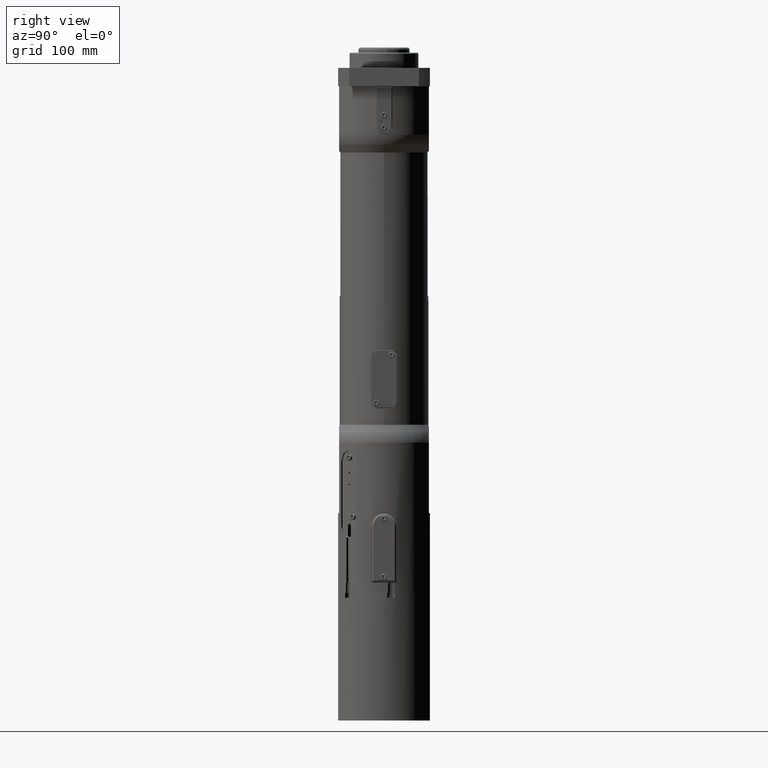
[diagram: clean part render]
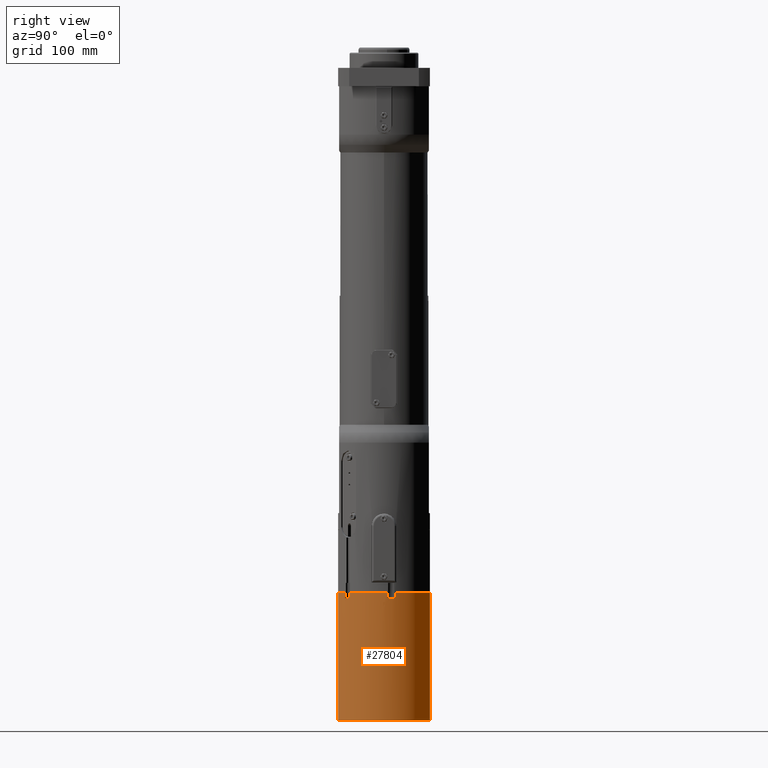
[diagram: same view with one face highlighted and labeled with its STEP entity id]
A machine part, right view. The second image highlights one B-rep face of the part: STEP entity #27804.
In plain terms, the highlighted cylindrical surface (partial cylindrical patch) has radius 51 mm, axis along (0, 0, -1).
Its self-contained STEP definition (entity closure, byte-faithful):
#1989=B_SPLINE_CURVE_WITH_KNOTS('',3,(#43054,#43055,#43056,#43057,#43058,
#43059,#43060,#43061,#43062,#43063,#43064,#43065,#43066,#43067,#43068,#43069,
#43070,#43071,#43072),.UNSPECIFIED.,.F.,.F.,(4,2,2,2,3,2,2,2,4),(-0.301461076527373,
-0.226077670894244,-0.150694265261116,-0.0753471326305579,0.,0.075347132630558,
0.150694265261116,0.226077670894244,0.301461076527373),.UNSPECIFIED.);
#1992=B_SPLINE_CURVE_WITH_KNOTS('',3,(#43113,#43114,#43115,#43116,#43117,
#43118,#43119,#43120,#43121,#43122,#43123,#43124,#43125,#43126,#43127,#43128,
#43129,#43130),.UNSPECIFIED.,.F.,.F.,(4,2,2,2,2,2,2,2,4),(0.30136199645185,
0.376745402084978,0.452128807718106,0.527475940348664,0.602823072979222,
0.67817020560978,0.753517338240339,0.828900743873467,0.904284149506595),
 .UNSPECIFIED.);
#3729=LINE('',#43629,#5582);
#3731=LINE('',#43635,#5584);
#3732=LINE('',#43636,#5585);
#3733=LINE('',#43638,#5586);
#3734=LINE('',#43641,#5587);
#3735=LINE('',#43642,#5588);
#5582=VECTOR('',#34802,5.);
#5584=VECTOR('',#34808,5.);
#5585=VECTOR('',#34809,5.);
#5586=VECTOR('',#34810,5.);
#5587=VECTOR('',#34813,125.);
#5588=VECTOR('',#34814,125.);
#7145=FACE_BOUND('',#10485,.T.);
#7666=CYLINDRICAL_SURFACE('',#30104,51.);
#8598=FACE_OUTER_BOUND('',#10484,.T.);
#10484=EDGE_LOOP('',(#21722,#21723,#21724,#21725,#21726,#21727,#21728,#21729,
#21730,#21731,#21732,#21733));
#10485=EDGE_LOOP('',(#21734,#21735,#21736,#21737));
#12373=CIRCLE('',#29902,51.);
#12380=CIRCLE('',#29913,51.);
#12382=CIRCLE('',#29917,51.);
#12395=CIRCLE('',#29939,51.);
#12399=CIRCLE('',#29946,51.);
#12458=CIRCLE('',#30059,51.);
#12486=CIRCLE('',#30105,51.);
#12487=CIRCLE('',#30106,51.);
#13985=VERTEX_POINT('',#43013);
#13986=VERTEX_POINT('',#43015);
#13998=VERTEX_POINT('',#43051);
#13999=VERTEX_POINT('',#43053);
#14002=VERTEX_POINT('',#43088);
#14004=VERTEX_POINT('',#43111);
#14025=VERTEX_POINT('',#43191);
#14026=VERTEX_POINT('',#43192);
#14031=VERTEX_POINT('',#43210);
#14034=VERTEX_POINT('',#43215);
#14123=VERTEX_POINT('',#43504);
#14124=VERTEX_POINT('',#43506);
#14171=VERTEX_POINT('',#43632);
#14172=VERTEX_POINT('',#43633);
#14173=VERTEX_POINT('',#43637);
#14174=VERTEX_POINT('',#43639);
#16771=EDGE_CURVE('',#13986,#13985,#12373,.T.);
#16784=EDGE_CURVE('',#13999,#13998,#1989,.T.);
#16789=EDGE_CURVE('',#13998,#14002,#12380,.T.);
#16792=EDGE_CURVE('',#14002,#14004,#1992,.T.);
#16794=EDGE_CURVE('',#14004,#13999,#12382,.T.);
#16823=EDGE_CURVE('',#14025,#14026,#12395,.T.);
#16836=EDGE_CURVE('',#14031,#14034,#12399,.T.);
#16966=EDGE_CURVE('',#14124,#14123,#12458,.T.);
#17025=EDGE_CURVE('',#14124,#14034,#3729,.T.);
#17027=EDGE_CURVE('',#14171,#14172,#12486,.T.);
#17028=EDGE_CURVE('',#14172,#14031,#3731,.T.);
#17029=EDGE_CURVE('',#14123,#13986,#3732,.T.);
#17030=EDGE_CURVE('',#14173,#13985,#3733,.T.);
#17031=EDGE_CURVE('',#14173,#14174,#12487,.T.);
#17032=EDGE_CURVE('',#14174,#14026,#3734,.T.);
#17033=EDGE_CURVE('',#14171,#14025,#3735,.T.);
#21722=ORIENTED_EDGE('',*,*,#17027,.T.);
#21723=ORIENTED_EDGE('',*,*,#17028,.T.);
#21724=ORIENTED_EDGE('',*,*,#16836,.T.);
#21725=ORIENTED_EDGE('',*,*,#17025,.F.);
#21726=ORIENTED_EDGE('',*,*,#16966,.T.);
#21727=ORIENTED_EDGE('',*,*,#17029,.T.);
#21728=ORIENTED_EDGE('',*,*,#16771,.T.);
#21729=ORIENTED_EDGE('',*,*,#17030,.F.);
#21730=ORIENTED_EDGE('',*,*,#17031,.T.);
#21731=ORIENTED_EDGE('',*,*,#17032,.T.);
#21732=ORIENTED_EDGE('',*,*,#16823,.F.);
#21733=ORIENTED_EDGE('',*,*,#17033,.F.);
#21734=ORIENTED_EDGE('',*,*,#16784,.T.);
#21735=ORIENTED_EDGE('',*,*,#16789,.T.);
#21736=ORIENTED_EDGE('',*,*,#16792,.T.);
#21737=ORIENTED_EDGE('',*,*,#16794,.T.);
#27804=ADVANCED_FACE('',(#8598,#7145),#7666,.T.);
#29902=AXIS2_PLACEMENT_3D('',#43016,#34269,#34270);
#29913=AXIS2_PLACEMENT_3D('',#43090,#34299,#34300);
#29917=AXIS2_PLACEMENT_3D('',#43133,#34308,#34309);
#29939=AXIS2_PLACEMENT_3D('',#43193,#34368,#34369);
#29946=AXIS2_PLACEMENT_3D('',#43217,#34391,#34392);
#30059=AXIS2_PLACEMENT_3D('',#43507,#34681,#34682);
#30104=AXIS2_PLACEMENT_3D('',#43631,#34804,#34805);
#30105=AXIS2_PLACEMENT_3D('',#43634,#34806,#34807);
#30106=AXIS2_PLACEMENT_3D('',#43640,#34811,#34812);
#34269=DIRECTION('center_axis',(0.,0.,-1.));
#34270=DIRECTION('ref_axis',(1.,-1.74155525431976E-16,0.));
#34299=DIRECTION('center_axis',(0.,0.,-1.));
#34300=DIRECTION('ref_axis',(1.,-1.74155525431976E-16,0.));
#34308=DIRECTION('center_axis',(0.,0.,1.));
#34309=DIRECTION('ref_axis',(1.,-1.74155525431976E-16,0.));
#34368=DIRECTION('center_axis',(0.,0.,-1.));
#34369=DIRECTION('ref_axis',(0.470588235294118,0.88235294117647,0.));
#34391=DIRECTION('center_axis',(0.,0.,-1.));
#34392=DIRECTION('ref_axis',(1.,-1.74155525431976E-16,0.));
#34681=DIRECTION('center_axis',(0.,0.,-1.));
#34682=DIRECTION('ref_axis',(1.,0.,0.));
#34802=DIRECTION('',(0.,0.,-1.));
#34804=DIRECTION('center_axis',(0.,0.,-1.));
#34805=DIRECTION('ref_axis',(0.470588235294117,0.882352941176471,0.));
#34806=DIRECTION('center_axis',(0.,0.,-1.));
#34807=DIRECTION('ref_axis',(0.470588235294117,0.882352941176471,0.));
#34808=DIRECTION('',(0.,0.,-1.));
#34809=DIRECTION('',(0.,0.,-1.));
#34810=DIRECTION('',(0.,0.,-1.));
#34811=DIRECTION('center_axis',(0.,0.,-1.));
#34812=DIRECTION('ref_axis',(0.664287836400791,-0.747476869481562,0.));
#34813=DIRECTION('',(0.,0.,-1.));
#34814=DIRECTION('',(0.,0.,-1.));
#43013=CARTESIAN_POINT('',(33.8786796564404,-38.1213203435597,-15.));
#43015=CARTESIAN_POINT('',(38.1202813879946,-33.8798486847288,-15.));
#43016=CARTESIAN_POINT('Origin',(0.,-6.83336654412497E-14,-15.));
#43051=CARTESIAN_POINT('',(50.9901951359279,0.999999999999923,-23.));
#43053=CARTESIAN_POINT('',(50.9901951359279,0.999999999999923,-19.));
#43054=CARTESIAN_POINT('Ctrl Pts',(50.9901951359279,0.999999999999922,-19.));
#43055=CARTESIAN_POINT('Ctrl Pts',(50.9852681159518,1.25122971001587,-19.));
#43056=CARTESIAN_POINT('Ctrl Pts',(50.9779656340186,1.51914548705567,-19.0502256305226));
#43057=CARTESIAN_POINT('Ctrl Pts',(50.9608958043674,2.01193489230859,-19.2543998455725));
#43058=CARTESIAN_POINT('Ctrl Pts',(50.9512341865559,2.23681323507193,-19.4083458769331));
#43059=CARTESIAN_POINT('Ctrl Pts',(50.9344076927049,2.59184898735877,-19.7634621129666));
#43060=CARTESIAN_POINT('Ctrl Pts',(50.9261372375627,2.74572221424521,-19.9882928730339));
#43061=CARTESIAN_POINT('Ctrl Pts',(50.9147240876639,2.94979923123948,-20.4809814017097));
#43062=CARTESIAN_POINT('Ctrl Pts',(50.9116882454314,2.99999999999992,-20.7488428912315));
#43063=CARTESIAN_POINT('Ctrl Pts',(50.9116882454314,2.99999999999992,-21.));
#43064=CARTESIAN_POINT('Ctrl Pts',(50.9116882454314,2.99999999999992,-21.2511571087685));
#43065=CARTESIAN_POINT('Ctrl Pts',(50.9147240876639,2.94979923123948,-21.5190185982903));
#43066=CARTESIAN_POINT('Ctrl Pts',(50.9261372375627,2.74572221424521,-22.0117071269661));
#43067=CARTESIAN_POINT('Ctrl Pts',(50.9344076927049,2.59184898735877,-22.2365378870334));
#43068=CARTESIAN_POINT('Ctrl Pts',(50.9512341865559,2.23681323507193,-22.5916541230669));
#43069=CARTESIAN_POINT('Ctrl Pts',(50.9608958043674,2.01193489230859,-22.7456001544275));
#43070=CARTESIAN_POINT('Ctrl Pts',(50.9779656340186,1.51914548705568,-22.9497743694774));
#43071=CARTESIAN_POINT('Ctrl Pts',(50.9852681159518,1.25122971001587,-23.));
#43072=CARTESIAN_POINT('Ctrl Pts',(50.9901951359279,0.999999999999923,-23.));
#43088=CARTESIAN_POINT('',(50.9901951359279,-1.00000000000008,-23.));
#43090=CARTESIAN_POINT('Origin',(0.,-6.83336654412497E-14,-23.));
#43111=CARTESIAN_POINT('',(50.9901951359279,-1.00000000000008,-19.));
#43113=CARTESIAN_POINT('Ctrl Pts',(50.9901951359279,-1.00000000000008,-23.));
#43114=CARTESIAN_POINT('Ctrl Pts',(50.9852681159518,-1.25122971001603,-23.));
#43115=CARTESIAN_POINT('Ctrl Pts',(50.9779656340186,-1.51914548705583,-22.9497743694774));
#43116=CARTESIAN_POINT('Ctrl Pts',(50.9608958043674,-2.01193489230874,-22.7456001544275));
#43117=CARTESIAN_POINT('Ctrl Pts',(50.9512341865559,-2.23681323507209,-22.5916541230669));
#43118=CARTESIAN_POINT('Ctrl Pts',(50.9344076927049,-2.59184898735893,-22.2365378870334));
#43119=CARTESIAN_POINT('Ctrl Pts',(50.9261372375627,-2.74572221424536,-22.0117071269661));
#43120=CARTESIAN_POINT('Ctrl Pts',(50.9147240876639,-2.94979923123964,-21.5190185982903));
#43121=CARTESIAN_POINT('Ctrl Pts',(50.9116882454314,-3.00000000000008,-21.2511571087685));
#43122=CARTESIAN_POINT('Ctrl Pts',(50.9116882454314,-3.00000000000008,-20.7488428912315));
#43123=CARTESIAN_POINT('Ctrl Pts',(50.9147240876639,-2.94979923123964,-20.4809814017097));
#43124=CARTESIAN_POINT('Ctrl Pts',(50.9261372375627,-2.74572221424536,-19.9882928730339));
#43125=CARTESIAN_POINT('Ctrl Pts',(50.9344076927049,-2.59184898735893,-19.7634621129666));
#43126=CARTESIAN_POINT('Ctrl Pts',(50.9512341865559,-2.23681323507209,-19.4083458769331));
#43127=CARTESIAN_POINT('Ctrl Pts',(50.9608958043674,-2.01193489230874,-19.2543998455725));
#43128=CARTESIAN_POINT('Ctrl Pts',(50.9779656340186,-1.51914548705583,-19.0502256305226));
#43129=CARTESIAN_POINT('Ctrl Pts',(50.9852681159518,-1.25122971001603,-19.));
#43130=CARTESIAN_POINT('Ctrl Pts',(50.9901951359279,-1.00000000000008,-19.));
#43133=CARTESIAN_POINT('Origin',(0.,-6.83336654412497E-14,-19.));
#43191=CARTESIAN_POINT('',(24.,44.9999999999999,-135.));
#43192=CARTESIAN_POINT('',(24.,-45.0000000000001,-135.));
#43193=CARTESIAN_POINT('Origin',(0.,-6.83336654412497E-14,-135.));
#43210=CARTESIAN_POINT('',(49.7995983919549,10.9999999999999,-15.));
#43215=CARTESIAN_POINT('',(50.9116882454314,2.99999999999991,-15.));
#43217=CARTESIAN_POINT('Origin',(0.,-6.83336654412497E-14,-15.));
#43504=CARTESIAN_POINT('',(38.1202813879946,-33.8798486847288,-10.));
#43506=CARTESIAN_POINT('',(50.9116882454314,2.99999999999991,-10.));
#43507=CARTESIAN_POINT('Origin',(0.,0.,-10.));
#43629=CARTESIAN_POINT('',(50.9116882454314,2.99999999999991,-10.));
#43631=CARTESIAN_POINT('Origin',(0.,0.,-10.));
#43632=CARTESIAN_POINT('',(24.,45.,-10.));
#43633=CARTESIAN_POINT('',(49.7995983919549,10.9999999999999,-10.));
#43634=CARTESIAN_POINT('Origin',(0.,0.,-10.));
#43635=CARTESIAN_POINT('',(49.7995983919549,10.9999999999999,-10.));
#43636=CARTESIAN_POINT('',(38.1202813879946,-33.8798486847288,-10.));
#43637=CARTESIAN_POINT('',(33.8786796564404,-38.1213203435597,-10.));
#43638=CARTESIAN_POINT('',(33.8786796564404,-38.1213203435597,-10.));
#43639=CARTESIAN_POINT('',(24.,-45.,-10.));
#43640=CARTESIAN_POINT('Origin',(0.,0.,-10.));
#43641=CARTESIAN_POINT('',(24.,-45.,-10.));
#43642=CARTESIAN_POINT('',(24.,45.,-10.));